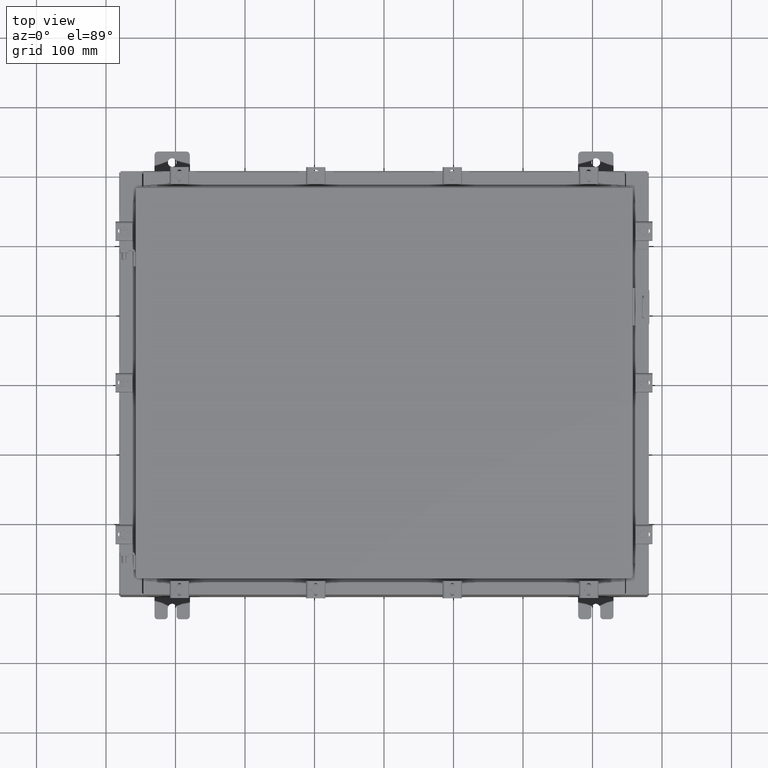
[diagram: clean part render]
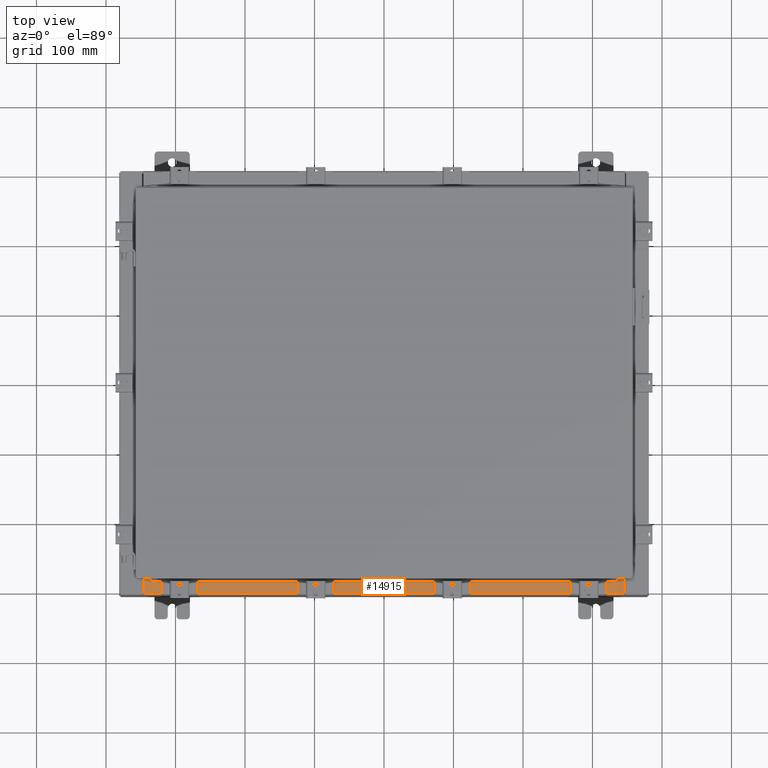
[diagram: same view with one face highlighted and labeled with its STEP entity id]
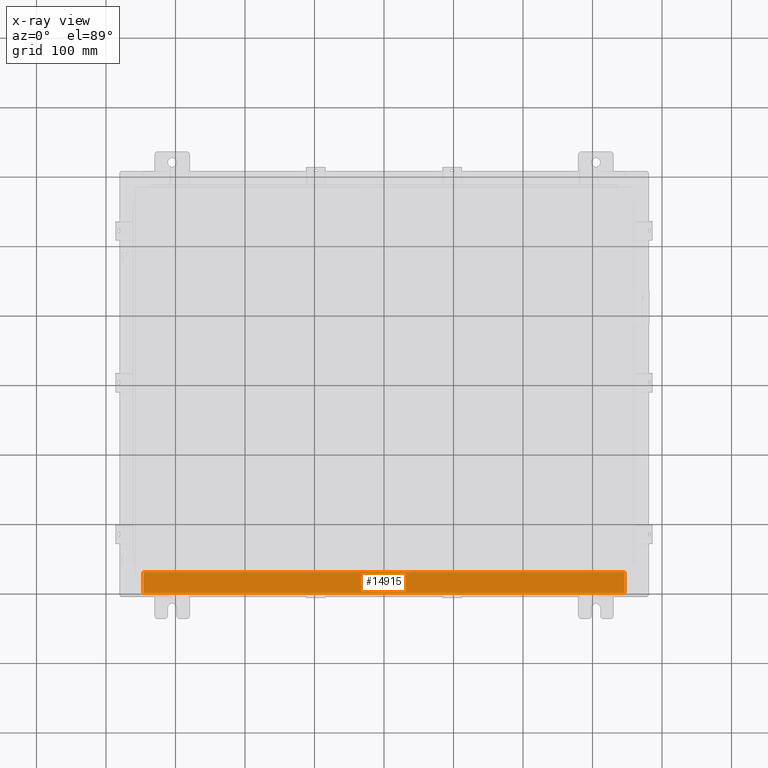
[diagram: x-ray of the same camera — body ghosted, the highlighted face saturated]
A machine part, top view. The second image highlights one B-rep face of the part: STEP entity #14915.
The next image is the same camera in x-ray: the body ghosted, the highlighted face saturated — about 0% of this face is hidden behind the body in this view.
In plain terms, the highlighted planar face has unit normal (-0, -0, 1).
Its self-contained STEP definition (entity closure, byte-faithful):
#1187 = CARTESIAN_POINT ( 'NONE',  ( 0.0000000000000000000, 1.425992975200418500E-014, 4.000000000000000000 ) ) ;
#2148 = CARTESIAN_POINT ( 'NONE',  ( -1.756834753793995900E-018, -0.08770000000000000000, 4.000000000000000900 ) ) ;
#2803 = ORIENTED_EDGE ( 'NONE', *, *, #3905, .T. ) ;
#2807 = EDGE_CURVE ( 'NONE', #12400, #11206, #3002, .T. ) ;
#3002 = LINE ( 'NONE', #7763, #11157 ) ;
#3341 = ORIENTED_EDGE ( 'NONE', *, *, #7407, .F. ) ;
#3905 = EDGE_CURVE ( 'NONE', #12400, #10732, #12755, .T. ) ;
#4059 = VECTOR ( 'NONE', #19633, 39.37007874015748100 ) ;
#6081 = ORIENTED_EDGE ( 'NONE', *, *, #2807, .F. ) ;
#6626 = EDGE_CURVE ( 'NONE', #16747, #10732, #9140, .T. ) ;
#6725 = CARTESIAN_POINT ( 'NONE',  ( 13.63720000000000400, -1.287299999999999900, 4.000000000000004400 ) ) ;
#7407 = EDGE_CURVE ( 'NONE', #11206, #16747, #18100, .T. ) ;
#7755 = FACE_OUTER_BOUND ( 'NONE', #13711, .T. ) ;
#7763 = CARTESIAN_POINT ( 'NONE',  ( 13.63720000000000400, -1.300299999999999800, 4.000000000000004400 ) ) ;
#8242 = DIRECTION ( 'NONE',  ( 0.0000000000000000000, -1.000000000000000000, 3.566381192773190000E-015 ) ) ;
#9140 = LINE ( 'NONE', #18774, #17864 ) ;
#10732 = VERTEX_POINT ( 'NONE', #20938 ) ;
#11157 = VECTOR ( 'NONE', #18200, 39.37007874015748100 ) ;
#11206 = VERTEX_POINT ( 'NONE', #6725 ) ;
#11937 = DIRECTION ( 'NONE',  ( -1.000000000000000000, 0.0000000000000000000, 0.0000000000000000000 ) ) ;
#12400 = VERTEX_POINT ( 'NONE', #15148 ) ;
#12755 = LINE ( 'NONE', #2148, #4059 ) ;
#13317 = AXIS2_PLACEMENT_3D ( 'NONE', #1187, #18677, #8242 ) ;
#13429 = VECTOR ( 'NONE', #11937, 39.37007874015748100 ) ;
#13711 = EDGE_LOOP ( 'NONE', ( #14146, #3341, #6081, #2803 ) ) ;
#14146 = ORIENTED_EDGE ( 'NONE', *, *, #6626, .F. ) ;
#14915 = ADVANCED_FACE ( 'NONE', ( #7755 ), #16906, .T. ) ;
#15148 = CARTESIAN_POINT ( 'NONE',  ( 13.63720000000000400, -0.08769999999999965300, 4.000000000000000000 ) ) ;
#16747 = VERTEX_POINT ( 'NONE', #18466 ) ;
#16906 = PLANE ( 'NONE',  #13317 ) ;
#17864 = VECTOR ( 'NONE', #20468, 39.37007874015748100 ) ;
#18100 = LINE ( 'NONE', #22420, #13429 ) ;
#18200 = DIRECTION ( 'NONE',  ( -0.0000000000000000000, -1.000000000000000000, 3.566381192773190000E-015 ) ) ;
#18466 = CARTESIAN_POINT ( 'NONE',  ( -13.63719999999999800, -1.287299999999999200, 4.000000000000004400 ) ) ;
#18677 = DIRECTION ( 'NONE',  ( 0.0000000000000000000, 3.566381192773190000E-015, 1.000000000000000000 ) ) ;
#18774 = CARTESIAN_POINT ( 'NONE',  ( -13.63719999999999800, -0.07469999999999973900, 4.000000000000000000 ) ) ;
#19633 = DIRECTION ( 'NONE',  ( -1.000000000000000000, 2.003232330437526000E-017, -7.144290108027600900E-032 ) ) ;
#20468 = DIRECTION ( 'NONE',  ( -0.0000000000000000000, 1.000000000000000000, -3.566381192773190000E-015 ) ) ;
#20938 = CARTESIAN_POINT ( 'NONE',  ( -13.63719999999999800, -0.08770000000000000000, 4.000000000000000000 ) ) ;
#22420 = CARTESIAN_POINT ( 'NONE',  ( 13.63720000000000400, -1.287299999999999900, 4.000000000000003600 ) ) ;